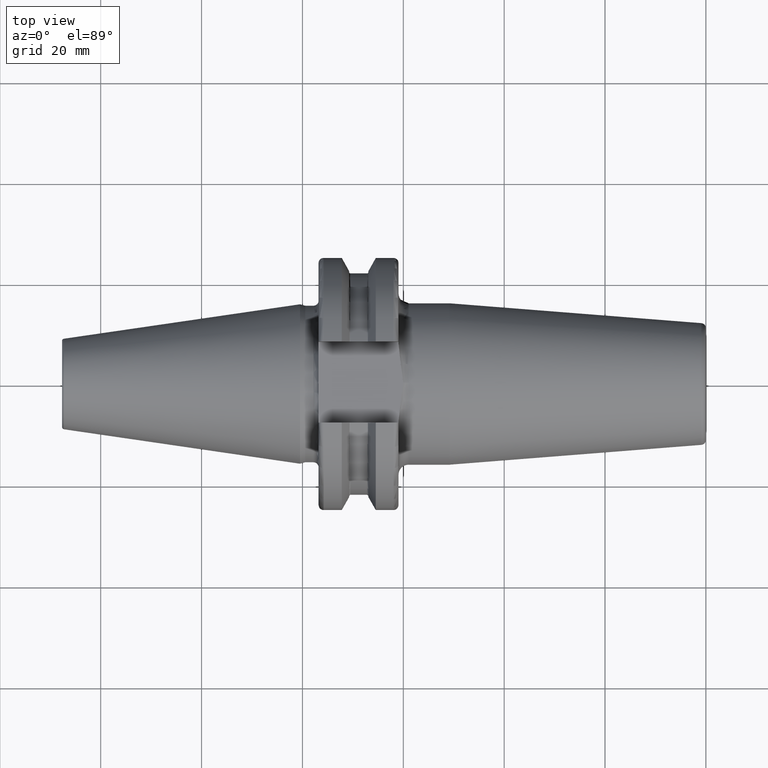
[diagram: clean part render]
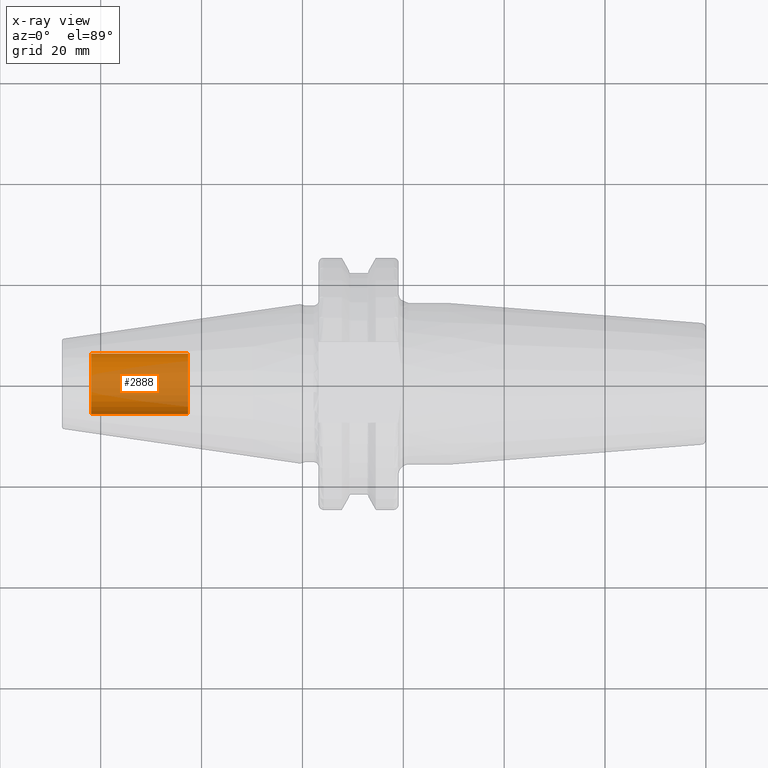
[diagram: x-ray — body ghosted, one internal face saturated and labeled with its STEP entity id]
A machine part, top view, then the same camera in x-ray: the body is ghosted and one INTERNAL B-rep face — a face not visible from any outside direction — is saturated and labeled: STEP entity #2888.
In plain terms, the highlighted cylindrical surface (edge-blend (fillet) strip) has radius 6.0027 mm, axis along (1, 0, 0).
Its self-contained STEP definition (entity closure, byte-faithful):
#2823=CARTESIAN_POINT('',(-4.19E1,0.E0,0.E0));
#2824=DIRECTION('',(-1.E0,0.E0,0.E0));
#2825=DIRECTION('',(0.E0,1.E0,0.E0));
#2826=AXIS2_PLACEMENT_3D('',#2823,#2824,#2825);
#2828=DIRECTION('',(1.E0,0.E0,0.E0));
#2829=VECTOR('',#2828,1.925E1);
#2830=CARTESIAN_POINT('',(-4.19E1,-6.00275E0,0.E0));
#2831=LINE('',#2830,#2829);
#2837=DIRECTION('',(1.E0,0.E0,0.E0));
#2838=VECTOR('',#2837,1.925E1);
#2839=CARTESIAN_POINT('',(-4.19E1,6.00275E0,0.E0));
#2840=LINE('',#2839,#2838);
#2846=CARTESIAN_POINT('',(-2.265E1,0.E0,0.E0));
#2847=DIRECTION('',(1.E0,0.E0,0.E0));
#2848=DIRECTION('',(0.E0,-1.E0,0.E0));
#2849=AXIS2_PLACEMENT_3D('',#2846,#2847,#2848);
#2861=CARTESIAN_POINT('',(-4.19E1,6.00275E0,0.E0));
#2862=CARTESIAN_POINT('',(-4.19E1,-6.00275E0,0.E0));
#2863=VERTEX_POINT('',#2861);
#2864=VERTEX_POINT('',#2862);
#2865=CARTESIAN_POINT('',(-2.265E1,6.00275E0,0.E0));
#2866=CARTESIAN_POINT('',(-2.265E1,-6.00275E0,0.E0));
#2867=VERTEX_POINT('',#2865);
#2868=VERTEX_POINT('',#2866);
#2873=CARTESIAN_POINT('',(-4.19E1,0.E0,0.E0));
#2874=DIRECTION('',(1.E0,0.E0,0.E0));
#2875=DIRECTION('',(0.E0,1.E0,0.E0));
#2876=AXIS2_PLACEMENT_3D('',#2873,#2874,#2875);
#2877=CYLINDRICAL_SURFACE('',#2876,6.00275E0);
#2879=ORIENTED_EDGE('',*,*,#2878,.T.);
#2881=ORIENTED_EDGE('',*,*,#2880,.T.);
#2883=ORIENTED_EDGE('',*,*,#2882,.T.);
#2885=ORIENTED_EDGE('',*,*,#2884,.F.);
#2886=EDGE_LOOP('',(#2879,#2881,#2883,#2885));
#2887=FACE_OUTER_BOUND('',#2886,.F.);
#2888=ADVANCED_FACE('',(#2887),#2877,.T.);
#2827=CIRCLE('',#2826,6.00275E0);
#2850=CIRCLE('',#2849,6.00275E0);
#2878=EDGE_CURVE('',#2863,#2864,#2827,.T.);
#2880=EDGE_CURVE('',#2864,#2868,#2831,.T.);
#2882=EDGE_CURVE('',#2868,#2867,#2850,.T.);
#2884=EDGE_CURVE('',#2863,#2867,#2840,.T.);